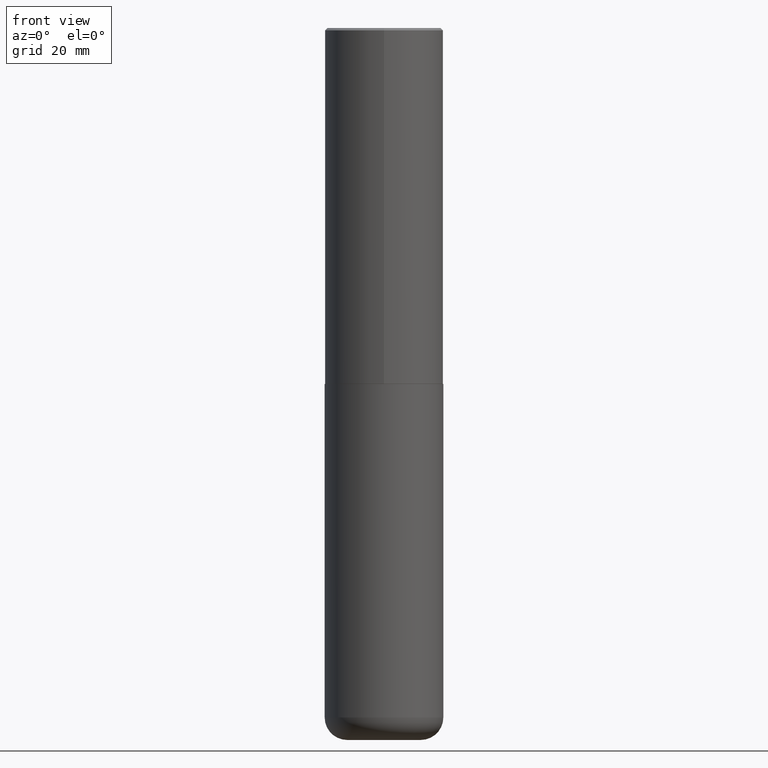
[diagram: clean part render]
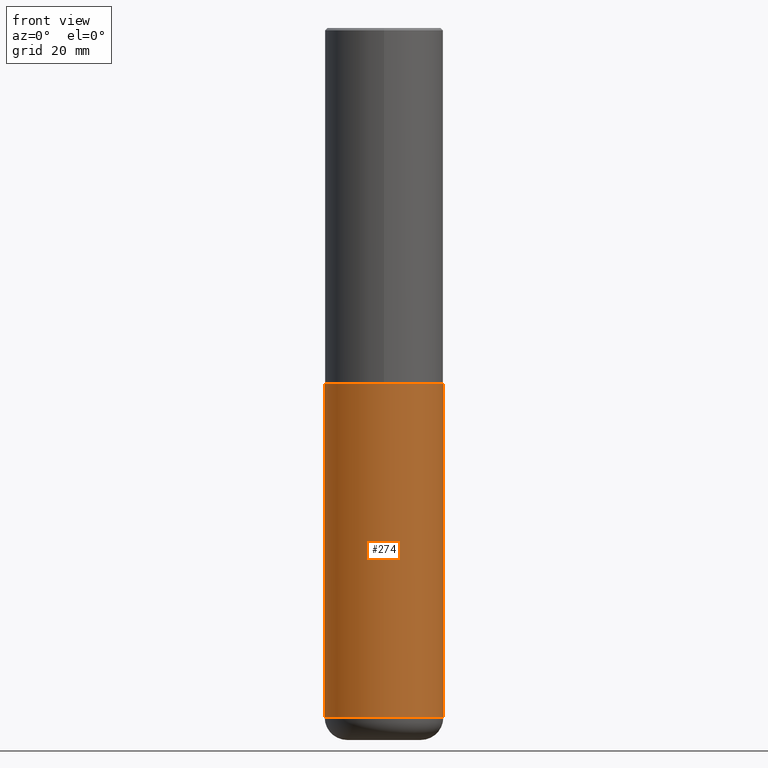
[diagram: same view with one face highlighted and labeled with its STEP entity id]
A machine part, front view. The second image highlights one B-rep face of the part: STEP entity #274.
In plain terms, the highlighted cylindrical surface (partial cylindrical patch) has radius 12.7 mm, axis along (-0, 0, 1).
Its self-contained STEP definition (entity closure, byte-faithful):
#2 = EDGE_LOOP ( 'NONE', ( #46, #260, #193, #71 ) ) ;
#16 = CARTESIAN_POINT ( 'NONE',  ( 0.5000000000000000000, -1.396592535537257129E-14, -3.000000000000000444 ) ) ;
#28 = CARTESIAN_POINT ( 'NONE',  ( -0.5000000000000000000, -1.182726161880355609E-14, -3.000000000000000444 ) ) ;
#46 = ORIENTED_EDGE ( 'NONE', *, *, #196, .F. ) ;
#51 = VERTEX_POINT ( 'NONE', #300 ) ;
#52 = CARTESIAN_POINT ( 'NONE',  ( 0.000000000000000000, 0.000000000000000000, 0.000000000000000000 ) ) ;
#68 = CARTESIAN_POINT ( 'NONE',  ( 1.420817376393564695E-28, -2.028550657867867926E-14, -5.810000000000000497 ) ) ;
#71 = ORIENTED_EDGE ( 'NONE', *, *, #302, .F. ) ;
#83 = DIRECTION ( 'NONE',  ( -2.445468806185136877E-29, 3.491481338843145188E-15, 1.000000000000000000 ) ) ;
#91 = LINE ( 'NONE', #345, #229 ) ;
#112 = VERTEX_POINT ( 'NONE', #272 ) ;
#115 = CARTESIAN_POINT ( 'NONE',  ( 0.5000000000000000000, -3.491481338843133355E-15, 2.438088387897967896E-29 ) ) ;
#139 = EDGE_CURVE ( 'NONE', #51, #112, #309, .T. ) ;
#149 = DIRECTION ( 'NONE',  ( -2.445468806185136597E-29, 3.491481338843145583E-15, 1.000000000000000000 ) ) ;
#150 = LINE ( 'NONE', #115, #247 ) ;
#169 = AXIS2_PLACEMENT_3D ( 'NONE', #52, #278, #402 ) ;
#172 = CARTESIAN_POINT ( 'NONE',  ( 7.336406418555409790E-29, -1.047444401652943635E-14, -3.000000000000000444 ) ) ;
#193 = ORIENTED_EDGE ( 'NONE', *, *, #357, .T. ) ;
#196 = EDGE_CURVE ( 'NONE', #51, #256, #91, .T. ) ;
#198 = AXIS2_PLACEMENT_3D ( 'NONE', #68, #149, #413 ) ;
#212 = DIRECTION ( 'NONE',  ( -2.445468806185136597E-29, 3.491481338843145583E-15, 1.000000000000000000 ) ) ;
#219 = DIRECTION ( 'NONE',  ( -2.445468806185136877E-29, 3.491481338843145188E-15, 1.000000000000000000 ) ) ;
#229 = VECTOR ( 'NONE', #219, 39.37007874015748143 ) ;
#247 = VECTOR ( 'NONE', #83, 39.37007874015748143 ) ;
#253 = FACE_OUTER_BOUND ( 'NONE', #2, .T. ) ;
#256 = VERTEX_POINT ( 'NONE', #28 ) ;
#260 = ORIENTED_EDGE ( 'NONE', *, *, #139, .T. ) ;
#265 = AXIS2_PLACEMENT_3D ( 'NONE', #172, #212, #271 ) ;
#271 = DIRECTION ( 'NONE',  ( 1.000000000000000000, -6.982962677686266711E-15, 0.000000000000000000 ) ) ;
#272 = CARTESIAN_POINT ( 'NONE',  ( 0.5000000000000000000, -2.377698791752181577E-14, -5.810000000000000497 ) ) ;
#274 = ADVANCED_FACE ( 'NONE', ( #253 ), #414, .T. ) ;
#278 = DIRECTION ( 'NONE',  ( -2.445468806185136597E-29, 3.491481338843145583E-15, 1.000000000000000000 ) ) ;
#300 = CARTESIAN_POINT ( 'NONE',  ( -0.5000000000000000000, -1.673279289987817518E-14, -5.810000000000000497 ) ) ;
#302 = EDGE_CURVE ( 'NONE', #256, #342, #377, .T. ) ;
#309 = CIRCLE ( 'NONE', #198, 0.5000000000000000000 ) ;
#342 = VERTEX_POINT ( 'NONE', #16 ) ;
#345 = CARTESIAN_POINT ( 'NONE',  ( -0.5000000000000000000, 3.552713678800500929E-15, -2.459467545127452891E-29 ) ) ;
#357 = EDGE_CURVE ( 'NONE', #112, #342, #150, .T. ) ;
#377 = CIRCLE ( 'NONE', #265, 0.5000000000000000000 ) ;
#402 = DIRECTION ( 'NONE',  ( 1.000000000000000000, -6.982962677686266711E-15, 4.876176775795935793E-29 ) ) ;
#413 = DIRECTION ( 'NONE',  ( 1.000000000000000000, -6.982962677686270655E-15, 0.000000000000000000 ) ) ;
#414 = CYLINDRICAL_SURFACE ( 'NONE', #169, 0.5000000000000000000 ) ;